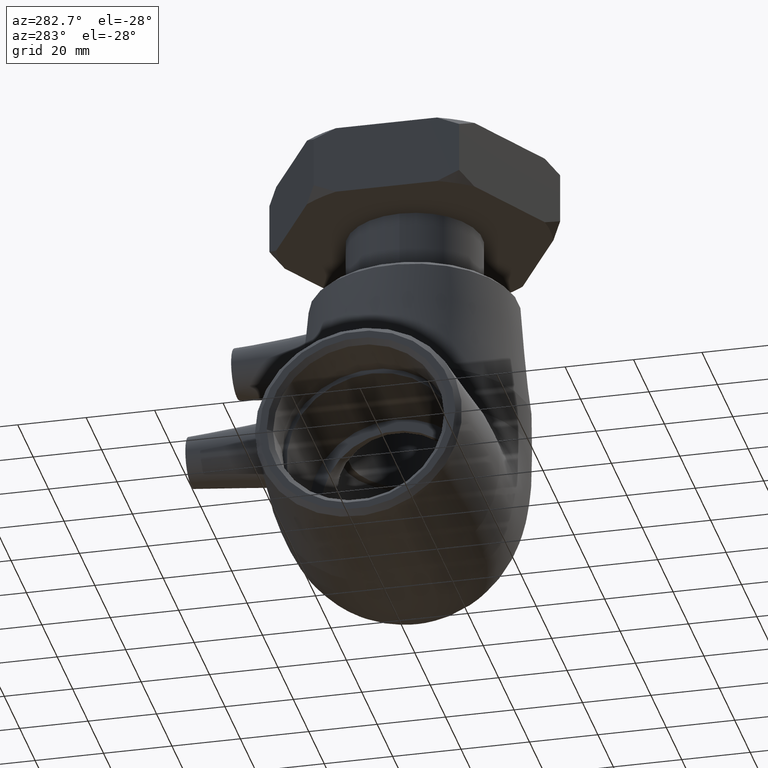
[diagram: clean part render]
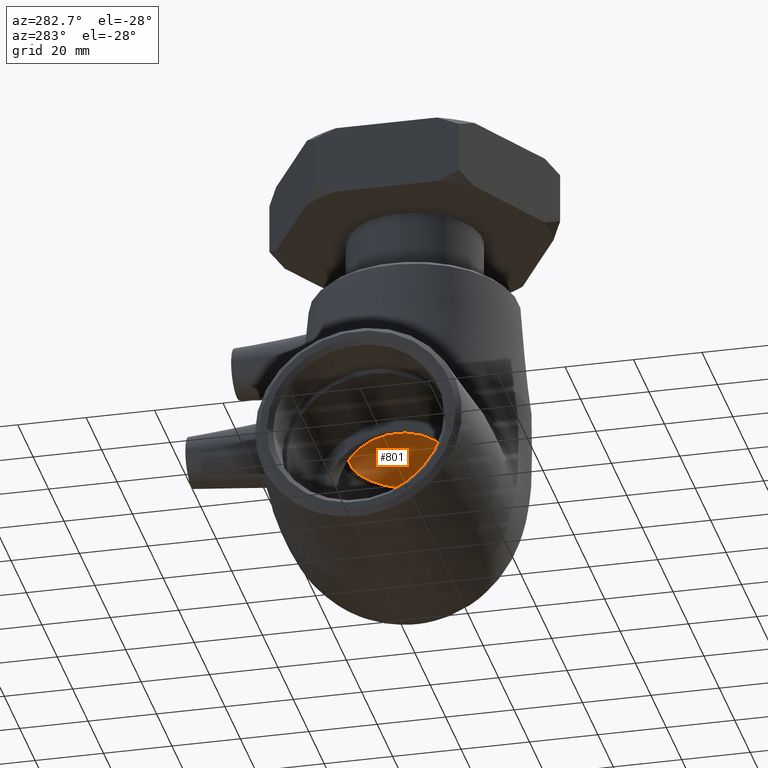
[diagram: same view with one face highlighted and labeled with its STEP entity id]
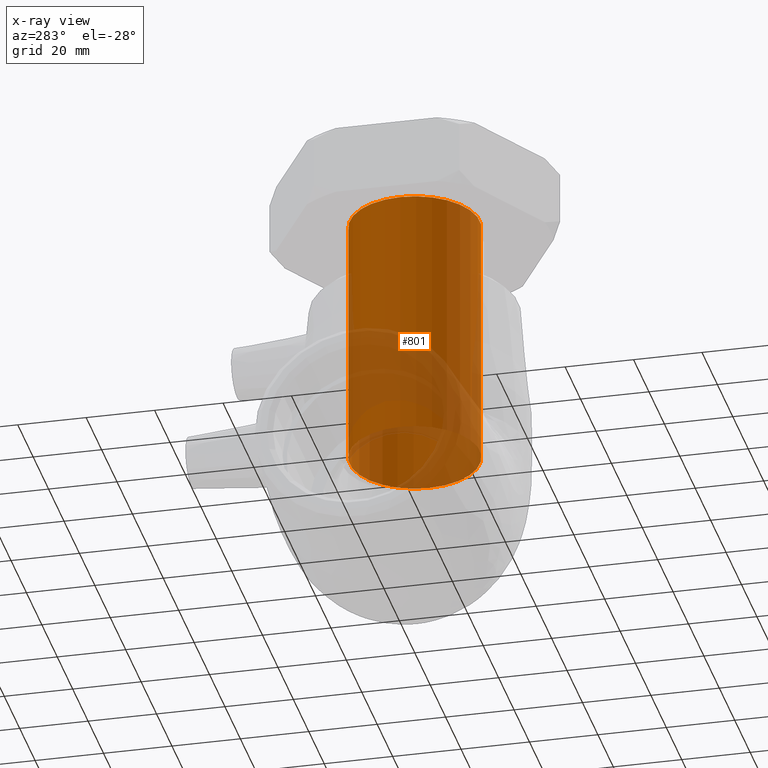
[diagram: x-ray of the same camera — body ghosted, the highlighted face saturated]
A machine part, auxiliary view. The second image highlights one B-rep face of the part: STEP entity #801.
The next image is the same camera in x-ray: the body ghosted, the highlighted face saturated — about 36% of this face is hidden behind the body in this view.
In plain terms, the highlighted cylindrical surface (bore or boss wall) has radius 19 mm, axis along (-0, 0, -1).
Its self-contained STEP definition (entity closure, byte-faithful):
#83=CYLINDRICAL_SURFACE('',#898,19.);
#136=FACE_BOUND('',#275,.T.);
#194=FACE_OUTER_BOUND('',#274,.T.);
#274=EDGE_LOOP('',(#692));
#275=EDGE_LOOP('',(#693));
#354=CIRCLE('',#897,19.);
#355=CIRCLE('',#899,19.);
#432=VERTEX_POINT('',#1472);
#433=VERTEX_POINT('',#1475);
#528=EDGE_CURVE('',#432,#432,#354,.T.);
#529=EDGE_CURVE('',#433,#433,#355,.T.);
#692=ORIENTED_EDGE('',*,*,#528,.T.);
#693=ORIENTED_EDGE('',*,*,#529,.F.);
#801=ADVANCED_FACE('',(#194,#136),#83,.F.);
#897=AXIS2_PLACEMENT_3D('',#1473,#1096,#1097);
#898=AXIS2_PLACEMENT_3D('',#1474,#1098,#1099);
#899=AXIS2_PLACEMENT_3D('',#1476,#1100,#1101);
#1096=DIRECTION('center_axis',(-2.3843715965104E-16,0.,-1.));
#1097=DIRECTION('ref_axis',(1.,0.,-2.3843715965104E-16));
#1098=DIRECTION('center_axis',(-2.3843715965104E-16,0.,-1.));
#1099=DIRECTION('ref_axis',(-1.,0.,1.98307743161103E-16));
#1100=DIRECTION('center_axis',(-2.3843715965104E-16,0.,-1.));
#1101=DIRECTION('ref_axis',(1.,0.,-2.3843715965104E-16));
#1472=CARTESIAN_POINT('',(-19.,0.,26.5));
#1473=CARTESIAN_POINT('Origin',(6.31858473075257E-15,0.,26.5));
#1474=CARTESIAN_POINT('Origin',(2.08918639286242E-14,0.,87.62));
#1475=CARTESIAN_POINT('',(-19.,0.,100.74));
#1476=CARTESIAN_POINT('Origin',(2.40201594632458E-14,0.,100.74));